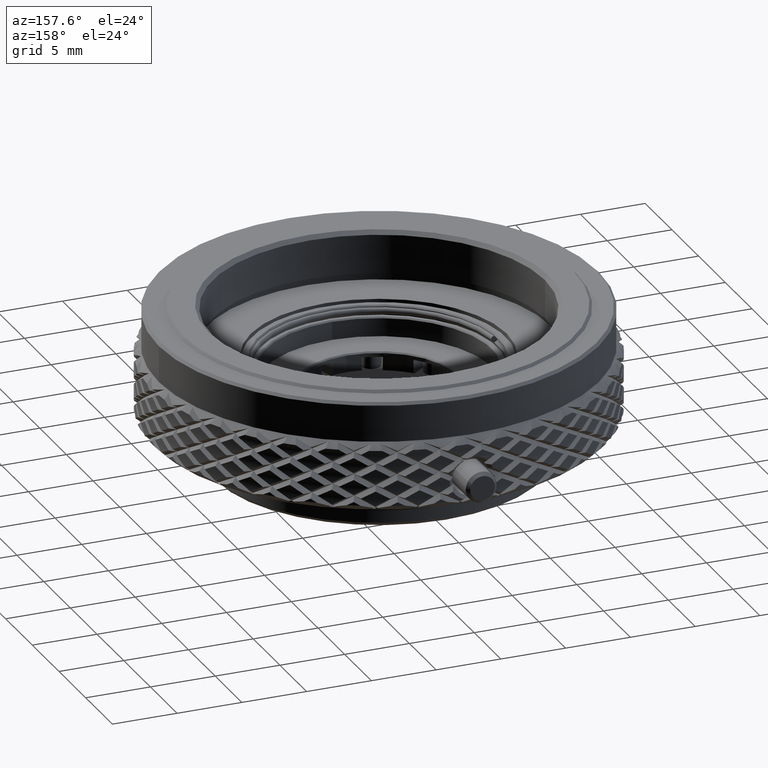
[diagram: clean part render]
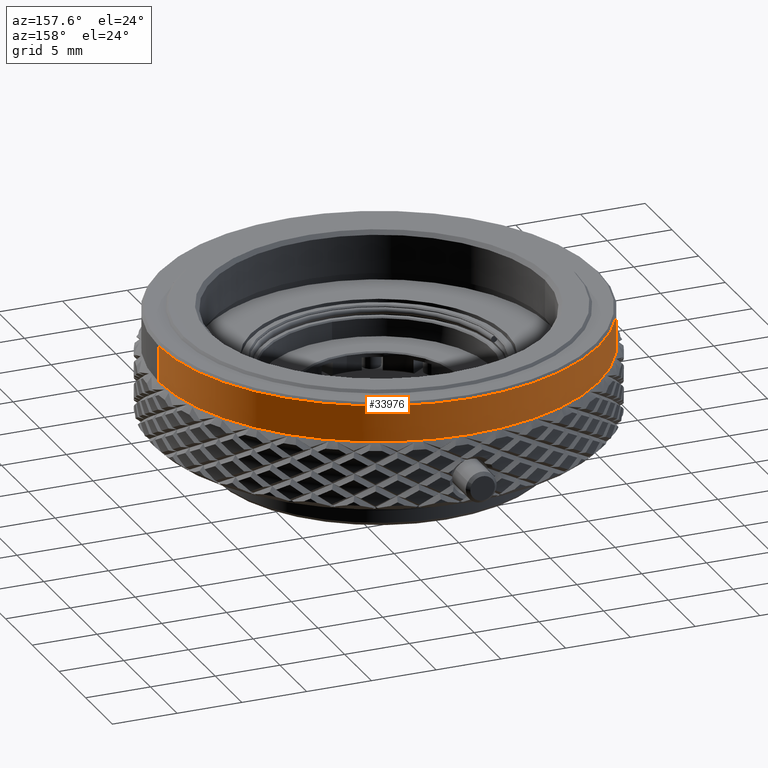
[diagram: same view with one face highlighted and labeled with its STEP entity id]
A machine part, auxiliary view. The second image highlights one B-rep face of the part: STEP entity #33976.
In plain terms, the highlighted cylindrical surface (partial cylindrical patch) has radius 17 mm, axis along (-0, -0, 1).
Its self-contained STEP definition (entity closure, byte-faithful):
#8574 = VERTEX_POINT ( 'NONE', #69386 ) ;
#9124 = VECTOR ( 'NONE', #10570, 1000.000000000000000 ) ;
#10570 = DIRECTION ( 'NONE',  ( -0.000000000000000000, -0.000000000000000000, 1.000000000000000000 ) ) ;
#12241 = DIRECTION ( 'NONE',  ( -0.000000000000000000, -0.000000000000000000, 1.000000000000000000 ) ) ;
#12732 = CARTESIAN_POINT ( 'NONE',  ( -8.043846907927924015E-15, -2.054373064707883438E-14, 8.500000000000000000 ) ) ;
#12788 = DIRECTION ( 'NONE',  ( 1.000000000000000000, 0.000000000000000000, 0.000000000000000000 ) ) ;
#15117 = DIRECTION ( 'NONE',  ( 1.000000000000000000, 0.000000000000000000, 0.000000000000000000 ) ) ;
#15858 = EDGE_CURVE ( 'NONE', #33875, #38728, #77902, .T. ) ;
#17411 = LINE ( 'NONE', #57273, #9124 ) ;
#20203 = VECTOR ( 'NONE', #12241, 1000.000000000000000 ) ;
#21506 = AXIS2_PLACEMENT_3D ( 'NONE', #12732, #65976, #33208 ) ;
#25052 = CARTESIAN_POINT ( 'NONE',  ( 16.99999999999999645, -2.054373064707883438E-14, 8.500000000000000000 ) ) ;
#29815 = AXIS2_PLACEMENT_3D ( 'NONE', #39886, #67081, #15117 ) ;
#32212 = EDGE_CURVE ( 'NONE', #8574, #54698, #17411, .T. ) ;
#33208 = DIRECTION ( 'NONE',  ( 1.000000000000000000, 0.000000000000000000, 0.000000000000000000 ) ) ;
#33875 = VERTEX_POINT ( 'NONE', #77966 ) ;
#33976 = ADVANCED_FACE ( 'NONE', ( #60343 ), #53012, .T. ) ;
#38728 = VERTEX_POINT ( 'NONE', #83481 ) ;
#39886 = CARTESIAN_POINT ( 'NONE',  ( -8.043846907927924015E-15, -2.054373064707883438E-14, 11.30000000000000071 ) ) ;
#39978 = EDGE_CURVE ( 'NONE', #54698, #38728, #68371, .T. ) ;
#40109 = DIRECTION ( 'NONE',  ( 0.000000000000000000, 0.000000000000000000, 1.000000000000000000 ) ) ;
#49289 = CIRCLE ( 'NONE', #69977, 17.00000000000000355 ) ;
#53012 = CYLINDRICAL_SURFACE ( 'NONE', #21506, 17.00000000000000355 ) ;
#54698 = VERTEX_POINT ( 'NONE', #63532 ) ;
#57273 = CARTESIAN_POINT ( 'NONE',  ( -17.00000000000001066, -1.846183108852833055E-14, 8.500000000000000000 ) ) ;
#60343 = FACE_OUTER_BOUND ( 'NONE', #83060, .T. ) ;
#63065 = ORIENTED_EDGE ( 'NONE', *, *, #65931, .T. ) ;
#63532 = CARTESIAN_POINT ( 'NONE',  ( -17.00000000000001066, -2.054373064707883438E-14, 11.30000000000000071 ) ) ;
#65931 = EDGE_CURVE ( 'NONE', #33875, #8574, #49289, .T. ) ;
#65976 = DIRECTION ( 'NONE',  ( -0.000000000000000000, -0.000000000000000000, 1.000000000000000000 ) ) ;
#67081 = DIRECTION ( 'NONE',  ( 0.000000000000000000, 0.000000000000000000, -1.000000000000000000 ) ) ;
#68371 = CIRCLE ( 'NONE', #29815, 17.00000000000000355 ) ;
#69386 = CARTESIAN_POINT ( 'NONE',  ( -17.00000000000001066, -1.846183108852833055E-14, 8.500000000000000000 ) ) ;
#69977 = AXIS2_PLACEMENT_3D ( 'NONE', #71584, #40109, #12788 ) ;
#71584 = CARTESIAN_POINT ( 'NONE',  ( -8.043846907927924015E-15, -2.054373064707883438E-14, 8.500000000000000000 ) ) ;
#75803 = ORIENTED_EDGE ( 'NONE', *, *, #32212, .T. ) ;
#77902 = LINE ( 'NONE', #25052, #20203 ) ;
#77966 = CARTESIAN_POINT ( 'NONE',  ( 16.99999999999999645, -2.054373064707883438E-14, 8.500000000000000000 ) ) ;
#78045 = ORIENTED_EDGE ( 'NONE', *, *, #39978, .T. ) ;
#80581 = ORIENTED_EDGE ( 'NONE', *, *, #15858, .F. ) ;
#83060 = EDGE_LOOP ( 'NONE', ( #63065, #75803, #78045, #80581 ) ) ;
#83481 = CARTESIAN_POINT ( 'NONE',  ( 16.99999999999999645, -1.846183108852833055E-14, 11.30000000000000071 ) ) ;